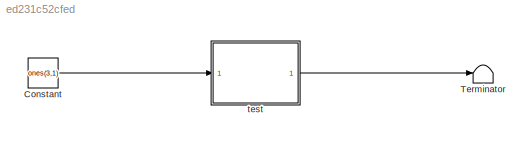
MODEL slx_ed231c52cfed
KIND model
CONFIG AbsTol = auto
CONFIG EnableMultiTasking = off
CONFIG FixedStep = .01
CONFIG MaxStep = auto
CONFIG MinStep = auto
CONFIG RelTol = 1e-3
CONFIG SampleTimeConstraint = Unconstrained
CONFIG Solver = FixedStepAuto
CONFIG SolverName = FixedStepAuto
CONFIG StartTime = 0.0
CONFIG StopTime = 10.0
BLOCK [Constant] Constant
  Value = ones(3,1)
BLOCK [Terminator] Terminator
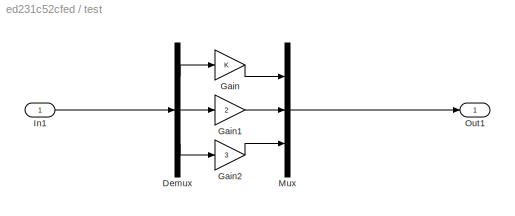
BLOCK [SubSystem] test 
  Ports = [1, 1]
  RequestExecContextInheritance = off
  TreatAsAtomicUnit = on
  Variant = off
BLOCK [Demux] test /Demux
  DisplayOption = bar
  Outputs = 3
  Ports = [1, 3]
BLOCK [Gain] test /Gain
  OutDataTypeStr = Inherit: Inherit via internal rule
  ParamDataTypeStr = Inherit: Inherit via internal rule
  SaturateOnIntegerOverflow = off
BLOCK [Gain] test /Gain1
  Gain = 2
  OutDataTypeStr = Inherit: Inherit via internal rule
  ParamDataTypeStr = Inherit: Inherit via internal rule
  SaturateOnIntegerOverflow = off
BLOCK [Gain] test /Gain2
  Gain = 3
  OutDataTypeStr = Inherit: Inherit via internal rule
  ParamDataTypeStr = Inherit: Inherit via internal rule
  SaturateOnIntegerOverflow = off
BLOCK [Inport] test /In1
  IconDisplay = Port number
BLOCK [Mux] test /Mux
  DisplayOption = bar
  Inputs = 3
  Ports = [3, 1]
BLOCK [Outport] test /Out1
  IconDisplay = Port number
LINE Constant:1 -> test :1
LINE test /Demux:1 -> test /Gain:1
LINE test /Demux:2 -> test /Gain1:1
LINE test /Demux:3 -> test /Gain2:1
LINE test /Gain1:1 -> test /Mux:2
LINE test /Gain2:1 -> test /Mux:3
LINE test /Gain:1 -> test /Mux:1
LINE test /In1:1 -> test /Demux:1
LINE test /Mux:1 -> test /Out1:1
LINE test :1 -> Terminator:1
